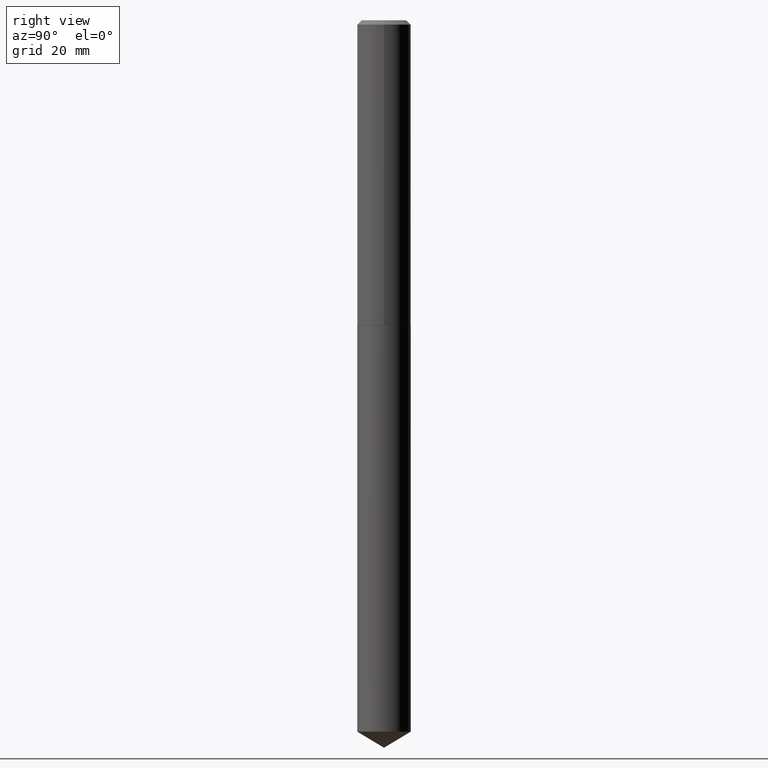
[diagram: clean part render]
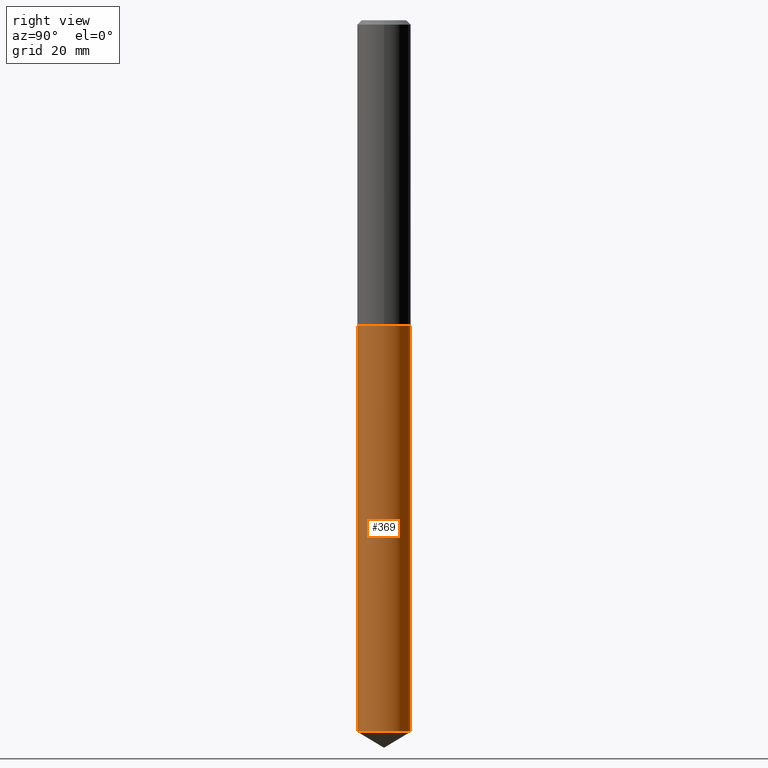
[diagram: same view with one face highlighted and labeled with its STEP entity id]
A machine part, right view. The second image highlights one B-rep face of the part: STEP entity #369.
In plain terms, the highlighted cylindrical surface (edge-blend (fillet) strip) has radius 4.8997 mm, axis along (-0, 0, 1).
Its self-contained STEP definition (entity closure, byte-faithful):
#2 = DIRECTION ( 'NONE',  ( -2.445443870403616204E-29, 3.491517048301539205E-15, 1.000000000000000000 ) ) ;
#20 = CIRCLE ( 'NONE', #238, 0.1928999999999999881 ) ;
#38 = EDGE_CURVE ( 'NONE', #310, #282, #20, .T. ) ;
#48 = EDGE_LOOP ( 'NONE', ( #116, #172, #264, #204 ) ) ;
#51 = VERTEX_POINT ( 'NONE', #188 ) ;
#59 = EDGE_CURVE ( 'NONE', #147, #51, #64, .T. ) ;
#64 = CIRCLE ( 'NONE', #176, 0.1928999999999999881 ) ;
#70 = CARTESIAN_POINT ( 'NONE',  ( -1.347013500525555043E-15, -0.1929000000000178627, -5.120293986589583568 ) ) ;
#81 = CARTESIAN_POINT ( 'NONE',  ( 1.370636937281286422E-15, 0.1928999999999922998, -2.196800000000000974 ) ) ;
#96 = DIRECTION ( 'NONE',  ( -2.445443870403616204E-29, 3.491517048301539205E-15, 1.000000000000000000 ) ) ;
#116 = ORIENTED_EDGE ( 'NONE', *, *, #38, .T. ) ;
#126 = EDGE_CURVE ( 'NONE', #310, #147, #219, .T. ) ;
#132 = DIRECTION ( 'NONE',  ( -6.982962677686265133E-15, -1.000000000000000000, 2.832398127179122126E-15 ) ) ;
#140 = DIRECTION ( 'NONE',  ( -2.445443870403616204E-29, 3.491517048301539205E-15, 1.000000000000000000 ) ) ;
#147 = VERTEX_POINT ( 'NONE', #198 ) ;
#153 = DIRECTION ( 'NONE',  ( -6.982962677686265133E-15, -1.000000000000000000, 2.832398127179122126E-15 ) ) ;
#156 = CARTESIAN_POINT ( 'NONE',  ( 5.372205873427508601E-29, -7.670086205170624158E-15, -2.196800000000000530 ) ) ;
#172 = ORIENTED_EDGE ( 'NONE', *, *, #210, .T. ) ;
#176 = AXIS2_PLACEMENT_3D ( 'NONE', #246, #96, #132 ) ;
#188 = CARTESIAN_POINT ( 'NONE',  ( 1.370636937281358800E-15, 0.1928999999999923276, -2.196800000000000974 ) ) ;
#198 = CARTESIAN_POINT ( 'NONE',  ( -1.347013500525626829E-15, -0.1929000000000076487, -2.196800000000000086 ) ) ;
#203 = CARTESIAN_POINT ( 'NONE',  ( 1.370636937281358012E-15, 0.1928999999999820580, -5.120293986589585344 ) ) ;
#204 = ORIENTED_EDGE ( 'NONE', *, *, #126, .F. ) ;
#210 = EDGE_CURVE ( 'NONE', #282, #51, #317, .T. ) ;
#213 = DIRECTION ( 'NONE',  ( -2.445443870403616204E-29, 3.491517048301539205E-15, 1.000000000000000000 ) ) ;
#219 = LINE ( 'NONE', #364, #266 ) ;
#238 = AXIS2_PLACEMENT_3D ( 'NONE', #362, #213, #270 ) ;
#246 = CARTESIAN_POINT ( 'NONE',  ( 5.372205873427508601E-29, -7.670086205170624158E-15, -2.196800000000000530 ) ) ;
#264 = ORIENTED_EDGE ( 'NONE', *, *, #59, .F. ) ;
#266 = VECTOR ( 'NONE', #366, 39.37007874015748143 ) ;
#270 = DIRECTION ( 'NONE',  ( -6.982962677686265133E-15, -1.000000000000000000, 5.664796254358244252E-15 ) ) ;
#282 = VERTEX_POINT ( 'NONE', #203 ) ;
#304 = CYLINDRICAL_SURFACE ( 'NONE', #327, 0.1928999999999999881 ) ;
#310 = VERTEX_POINT ( 'NONE', #70 ) ;
#317 = LINE ( 'NONE', #81, #351 ) ;
#327 = AXIS2_PLACEMENT_3D ( 'NONE', #156, #2, #153 ) ;
#351 = VECTOR ( 'NONE', #140, 39.37007874015748143 ) ;
#355 = FACE_OUTER_BOUND ( 'NONE', #48, .T. ) ;
#362 = CARTESIAN_POINT ( 'NONE',  ( 1.252144632309483871E-28, -1.787751529995518748E-14, -5.120293986589584456 ) ) ;
#364 = CARTESIAN_POINT ( 'NONE',  ( -1.347013500525626829E-15, -0.1929000000000076487, -2.196800000000000086 ) ) ;
#366 = DIRECTION ( 'NONE',  ( -2.445443870403616204E-29, 3.491517048301539205E-15, 1.000000000000000000 ) ) ;
#369 = ADVANCED_FACE ( 'NONE', ( #355 ), #304, .T. ) ;